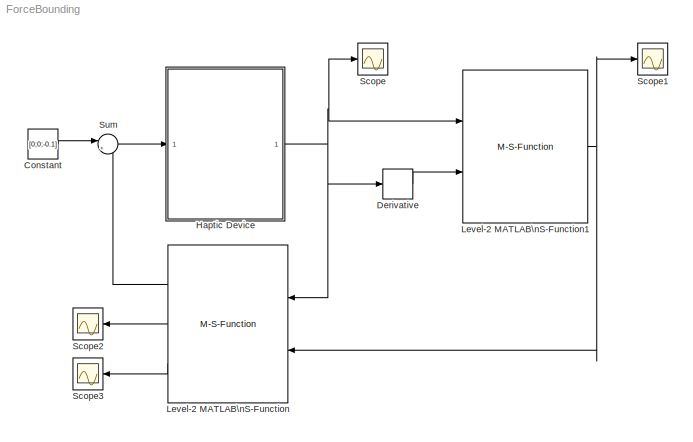
MODEL ForceBounding
KIND model
BLOCK [Constant] Constant
  SID = 17
  Value = [0;0;-0.1]
BLOCK [Derivative] Derivative
  SID = 13
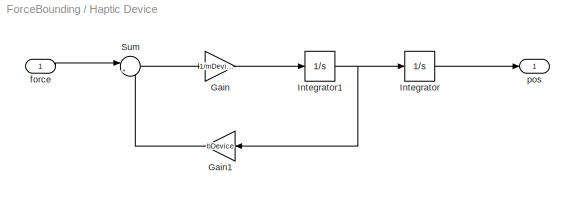
BLOCK [SubSystem] Haptic Device
  Ports = [1, 1]
  RequestExecContextInheritance = off
  SID = 8
  Variant = off
BLOCK [Gain] Haptic Device/Gain
  Gain = 1/mDevice
  OutDataTypeStr = Inherit: Inherit via internal rule
  ParamDataTypeStr = Inherit: Inherit via internal rule
  SID = 4
  SaturateOnIntegerOverflow = off
BLOCK [Gain] Haptic Device/Gain1
  Gain = bDevice
  OutDataTypeStr = Inherit: Inherit via internal rule
  ParamDataTypeStr = Inherit: Inherit via internal rule
  SID = 6
  SaturateOnIntegerOverflow = off
BLOCK [Integrator] Haptic Device/Integrator
  InitialCondition = p0
  Ports = [1, 1]
  SID = 5
BLOCK [Integrator] Haptic Device/Integrator1
  InitialCondition = v0
  Ports = [1, 1]
  SID = 7
BLOCK [Sum] Haptic Device/Sum
  IconShape = round
  InputSameDT = off
  Inputs = |+-
  OutDataTypeStr = Inherit: Inherit via internal rule
  Ports = [2, 1]
  SID = 3
  SaturateOnIntegerOverflow = off
BLOCK [Inport] Haptic Device/force
  IconDisplay = Port number
  SID = 9
BLOCK [Outport] Haptic Device/pos
  IconDisplay = Port number
  SID = 10
BLOCK [M-S-Function] Level-2 MATLAB\nS-Function
  FunctionName = Controller
  Parameters = bDevice, dof, tsampling, p0
  Ports = [2, 3]
  SID = 11
BLOCK [M-S-Function] Level-2 MATLAB\nS-Function1
  FunctionName = VirtualEnvironment0
  Parameters = kBall, bBall, nBall, cBall, rBall, dof, tsampling
  Ports = [2, 1]
  SID = 12
BLOCK [Scope] Scope
  Ports = [1]
  SID = 14
  ScopeSpecificationString = Simulink.scopes.TimeScopeBlockCfg('CurrentConfiguration', extmgr.ConfigurationSet(extmgr.Configuration('Core','General UI',true),extmgr.Configuration('Core','Source UI',true),extmgr.Configuration('Sources','WiredSimulink',true),extmgr.Configuration('Visuals','Time Domain',true,'SerializedDisplays',{struct('MinYLimReal','0.08215','MaxYLimReal','0.13675','YLabelReal','','MinYLimMag','0.08215','MaxYL...<+1467ch>
BLOCK [Scope] Scope1
  Ports = [1]
  SID = 15
  ScopeSpecificationString = Simulink.scopes.TimeScopeBlockCfg('CurrentConfiguration', extmgr.ConfigurationSet(extmgr.Configuration('Core','General UI',true),extmgr.Configuration('Core','Source UI',true),extmgr.Configuration('Sources','WiredSimulink',true,'DataLoggingVariableName','ScopeData1'),extmgr.Configuration('Visuals','Time Domain',true,'SerializedDisplays',{struct('MinYLimReal','-4.15044','MaxYLimReal','37.35399','YLa...<+1482ch>
BLOCK [Scope] Scope2
  Ports = [1]
  SID = 18
  ScopeSpecificationString = Simulink.scopes.TimeScopeBlockCfg('CurrentConfiguration', extmgr.ConfigurationSet(extmgr.Configuration('Core','General UI',true),extmgr.Configuration('Core','Source UI',true),extmgr.Configuration('Sources','WiredSimulink',true,'DataLoggingVariableName','ScopeData2'),extmgr.Configuration('Visuals','Time Domain',true,'SerializedDisplays',{struct('MinYLimReal','-0.00024','MaxYLimReal','0.00213','YLab...<+1386ch>
BLOCK [Scope] Scope3
  Ports = [1]
  SID = 19
  ScopeSpecificationString = Simulink.scopes.TimeScopeBlockCfg('CurrentConfiguration', extmgr.ConfigurationSet(extmgr.Configuration('Core','General UI',true),extmgr.Configuration('Core','Source UI',true),extmgr.Configuration('Sources','WiredSimulink',true,'DataLoggingVariableName','ScopeData3'),extmgr.Configuration('Visuals','Time Domain',true,'SerializedDisplays',{struct('MinYLimReal','-0.12072','MaxYLimReal','1.0865','YLabe...<+1411ch>
BLOCK [Sum] Sum
  IconShape = round
  InputSameDT = off
  Inputs = |++
  OutDataTypeStr = Inherit: Inherit via internal rule
  Ports = [2, 1]
  SID = 16
  SaturateOnIntegerOverflow = off
LINE Constant:1 -> Sum:1
LINE Derivative:1 -> Level-2 MATLAB\nS-Function1:2
LINE Haptic Device/Gain1:1 -> Haptic Device/Sum:2
LINE Haptic Device/Gain:1 -> Haptic Device/Integrator1:1
NET Haptic Device/Integrator1:1 -> Haptic Device/Gain1:1, Haptic Device/Integrator:1
LINE Haptic Device/Integrator:1 -> Haptic Device/pos:1
LINE Haptic Device/Sum:1 -> Haptic Device/Gain:1
LINE Haptic Device/force:1 -> Haptic Device/Sum:1
NET Haptic Device:1 -> Derivative:1, Level-2 MATLAB\nS-Function1:1, Level-2 MATLAB\nS-Function:1, Scope:1
NET Level-2 MATLAB\nS-Function1:1 -> Level-2 MATLAB\nS-Function:2, Scope1:1
LINE Level-2 MATLAB\nS-Function:1 -> Sum:2
LINE Level-2 MATLAB\nS-Function:2 -> Scope2:1
LINE Level-2 MATLAB\nS-Function:3 -> Scope3:1
LINE Sum:1 -> Haptic Device:1
note: NET lines group one-source signal fan-out (src -> all destinations, sorted); 1:1 wires keep LINE
